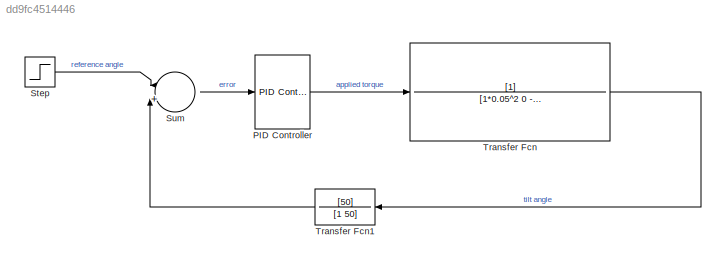
MODEL slx_dd9fc4514446
KIND model
CONFIG AbsTol = auto
CONFIG EnableMultiTasking = off
CONFIG FixedStep = auto
CONFIG MaxStep = auto
CONFIG MinStep = auto
CONFIG RelTol = 1e-3
CONFIG SampleTimeConstraint = Unconstrained
CONFIG SolverName = VariableStepAuto
CONFIG StartTime = 0.0
CONFIG StopTime = 2.5
BLOCK [Reference] PID Controller  REF=slpidlib/PID Controller
  LibrarySourceBlock = simulink/Discrete/Discrete PID Controller
  SourceBlock = slpidlib/PID Controller
  SourceType = PID 1dof
BLOCK [Step] Step
  SampleTime = 0
BLOCK [Sum] Sum
  Inputs = |+-|
BLOCK [TransferFcn] Transfer Fcn
  Denominator = [1*0.05^2 0 -9.81*1*0.05]
BLOCK [TransferFcn] Transfer Fcn1
  Denominator = [1 50]
  NameLocation = top
  Numerator = [50]
LINE PID Controller:1 -> Transfer Fcn:1
LINE Step:1 -> Sum:1
LINE Sum:1 -> PID Controller:1
LINE Transfer Fcn1:1 -> Sum:2
LINE Transfer Fcn:1 -> Transfer Fcn1:1
